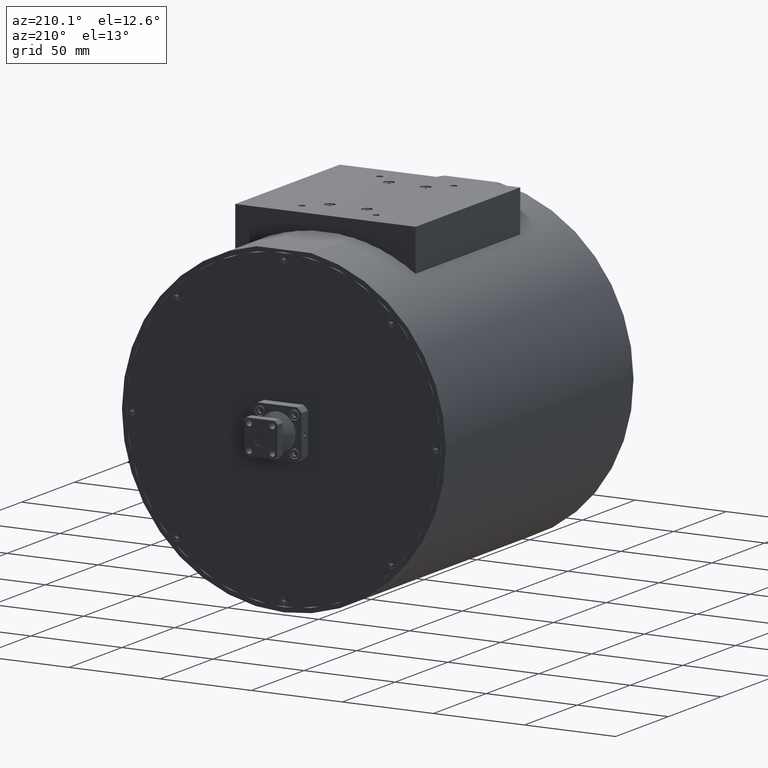
[diagram: clean part render]
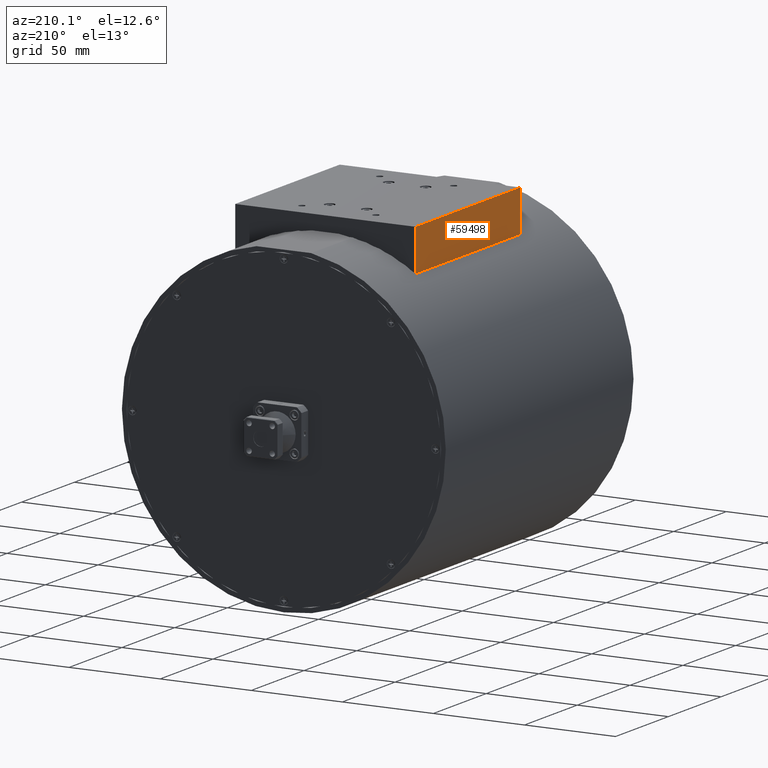
[diagram: same view with one face highlighted and labeled with its STEP entity id]
A machine part, auxiliary view. The second image highlights one B-rep face of the part: STEP entity #59498.
In plain terms, the highlighted planar face has unit normal (1, -0, 0).
Its self-contained STEP definition (entity closure, byte-faithful):
#2561 = LINE ( 'NONE', #12555, #61856 ) ;
#3960 = CARTESIAN_POINT ( 'NONE',  ( -3.520761672972044600, 2.994377155374182000, 4.605178668100231600 ) ) ;
#5257 = CARTESIAN_POINT ( 'NONE',  ( -3.520761672972044600, -0.9056228446258178800, 4.605178668100231600 ) ) ;
#5337 = DIRECTION ( 'NONE',  ( 1.247238774109135200E-016, 1.602807691679004700E-016, 1.000000000000000000 ) ) ;
#6338 = EDGE_CURVE ( 'NONE', #62749, #27246, #54111, .T. ) ;
#8407 = DIRECTION ( 'NONE',  ( -5.551115123125793800E-017, -1.000000000000000000, -1.803158653138880200E-016 ) ) ;
#9342 = EDGE_CURVE ( 'NONE', #27246, #17965, #52317, .T. ) ;
#10643 = DIRECTION ( 'NONE',  ( 1.247238774109135200E-016, 1.602807691679004700E-016, 1.000000000000000000 ) ) ;
#11203 = AXIS2_PLACEMENT_3D ( 'NONE', #39510, #18950, #8407 ) ;
#12555 = CARTESIAN_POINT ( 'NONE',  ( -3.520761672972044600, 2.994377155374182000, 4.605178668100231600 ) ) ;
#12722 = PLANE ( 'NONE',  #11203 ) ;
#14391 = CARTESIAN_POINT ( 'NONE',  ( -3.520761672972044600, -0.9056228446258178800, 3.705178668100232100 ) ) ;
#17965 = VERTEX_POINT ( 'NONE', #5257 ) ;
#18166 = VECTOR ( 'NONE', #52269, 39.37007874015748100 ) ;
#18950 = DIRECTION ( 'NONE',  ( 1.000000000000000000, -5.551115123125796300E-017, 1.108240629956715100E-016 ) ) ;
#23331 = FACE_OUTER_BOUND ( 'NONE', #60607, .T. ) ;
#27121 = CARTESIAN_POINT ( 'NONE',  ( -3.520761672972044600, 2.994377155374182000, 3.705178668100232100 ) ) ;
#27246 = VERTEX_POINT ( 'NONE', #14391 ) ;
#27458 = EDGE_CURVE ( 'NONE', #33960, #17965, #2561, .T. ) ;
#30828 = CARTESIAN_POINT ( 'NONE',  ( -3.520761672972044600, 2.994377155374182000, 4.605178668100231600 ) ) ;
#31155 = CARTESIAN_POINT ( 'NONE',  ( -3.520761672972044600, -0.9056228446258178800, 4.605178668100231600 ) ) ;
#32078 = LINE ( 'NONE', #30828, #40152 ) ;
#33158 = VECTOR ( 'NONE', #10643, 39.37007874015748100 ) ;
#33960 = VERTEX_POINT ( 'NONE', #3960 ) ;
#34446 = ORIENTED_EDGE ( 'NONE', *, *, #9342, .T. ) ;
#39510 = CARTESIAN_POINT ( 'NONE',  ( -3.520761672972044600, 2.994377155374182000, 4.605178668100231600 ) ) ;
#40152 = VECTOR ( 'NONE', #5337, 39.37007874015748100 ) ;
#41129 = EDGE_CURVE ( 'NONE', #62749, #33960, #32078, .T. ) ;
#41782 = CARTESIAN_POINT ( 'NONE',  ( -3.520761672972044600, 2.994377155374182000, 3.705178668100232100 ) ) ;
#47371 = ORIENTED_EDGE ( 'NONE', *, *, #6338, .T. ) ;
#47836 = DIRECTION ( 'NONE',  ( -5.551115123125793800E-017, -1.000000000000000000, -1.803158653138880200E-016 ) ) ;
#52269 = DIRECTION ( 'NONE',  ( -5.551115123125793800E-017, -1.000000000000000000, -1.803158653138880200E-016 ) ) ;
#52317 = LINE ( 'NONE', #31155, #33158 ) ;
#54111 = LINE ( 'NONE', #41782, #18166 ) ;
#58938 = ORIENTED_EDGE ( 'NONE', *, *, #41129, .F. ) ;
#59498 = ADVANCED_FACE ( 'NONE', ( #23331 ), #12722, .F. ) ;
#60607 = EDGE_LOOP ( 'NONE', ( #34446, #64147, #58938, #47371 ) ) ;
#61856 = VECTOR ( 'NONE', #47836, 39.37007874015748100 ) ;
#62749 = VERTEX_POINT ( 'NONE', #27121 ) ;
#64147 = ORIENTED_EDGE ( 'NONE', *, *, #27458, .F. ) ;